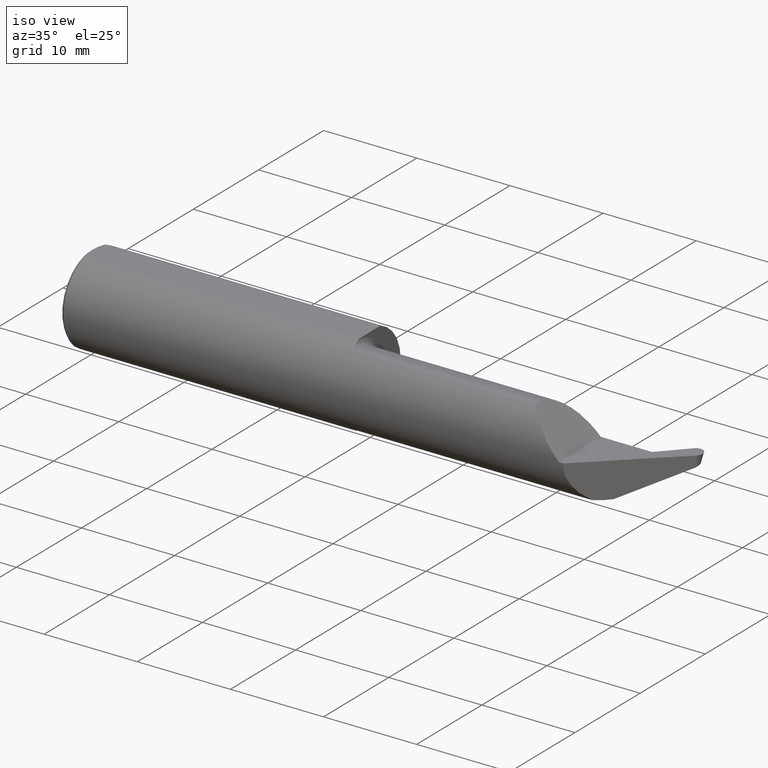
[diagram: clean part render]
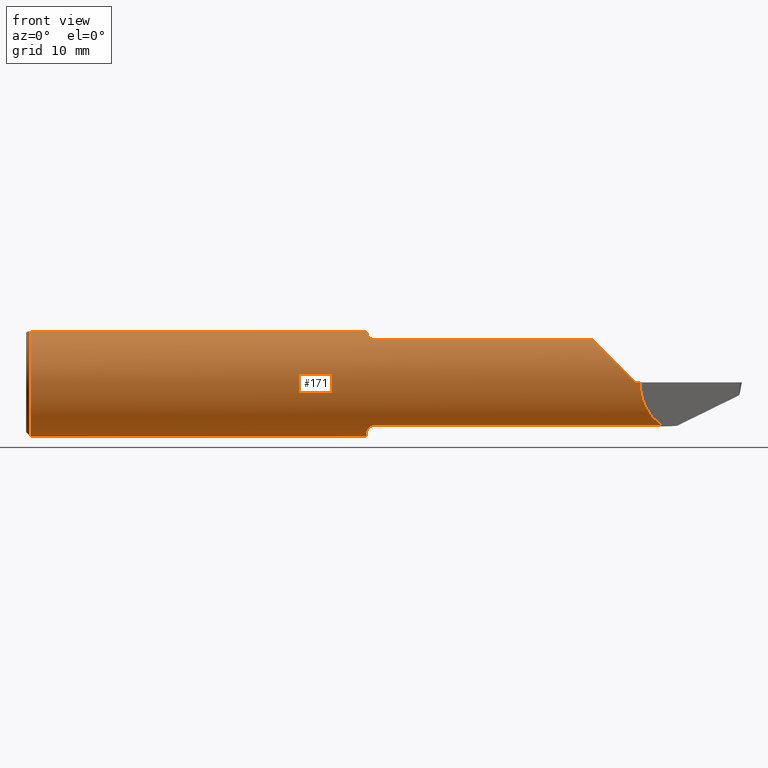
[diagram: tour spotlight — one face highlighted and labeled with its STEP entity id]
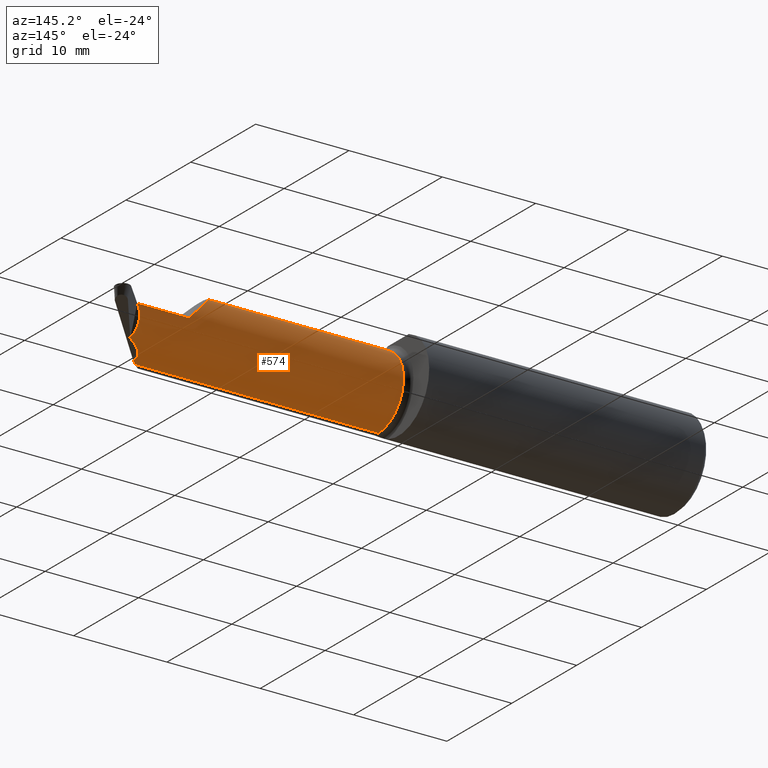
[diagram: tour spotlight — one face highlighted and labeled with its STEP entity id]
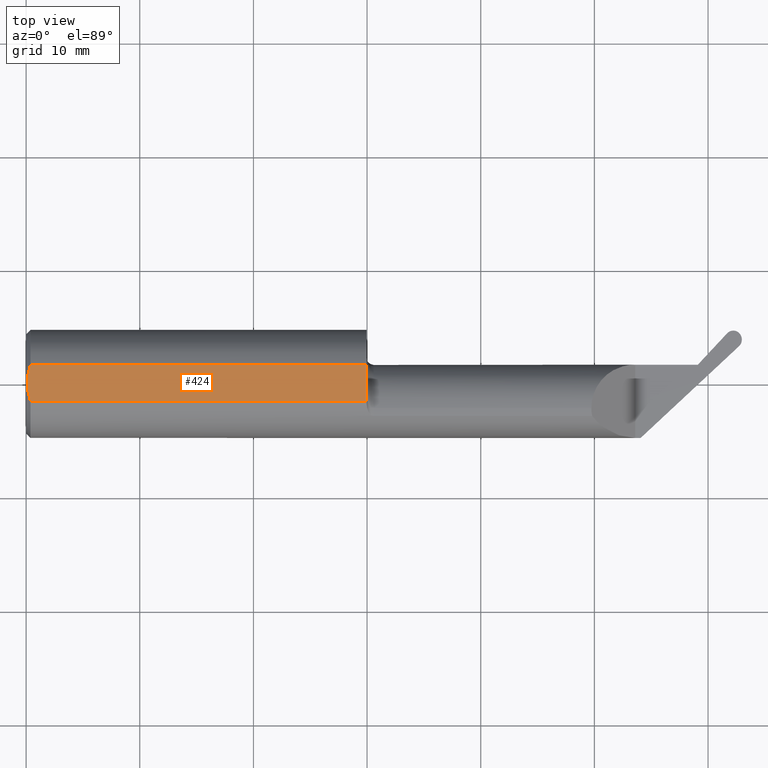
[diagram: tour spotlight — one face highlighted and labeled with its STEP entity id]
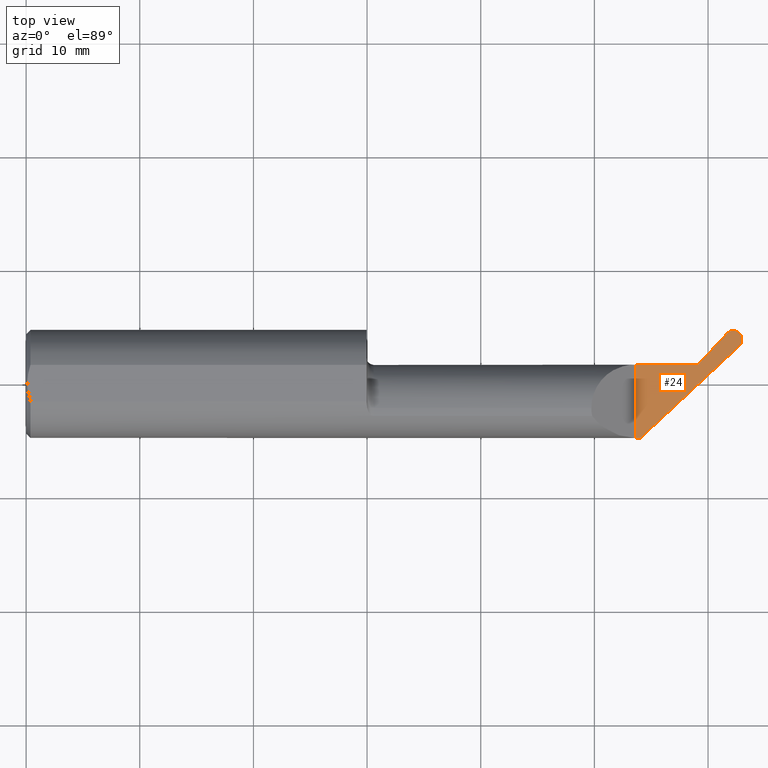
[diagram: tour spotlight — one face highlighted and labeled with its STEP entity id]
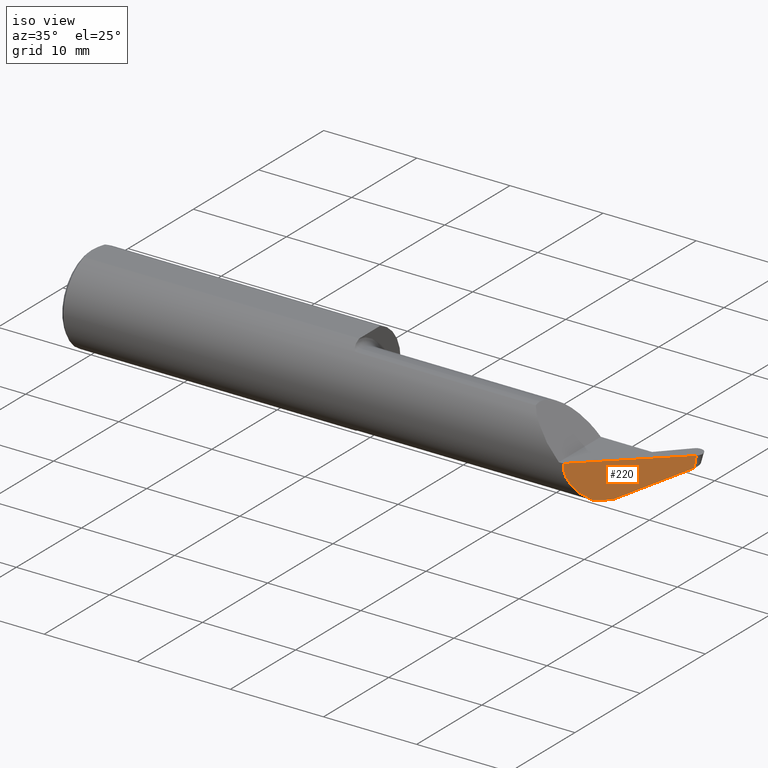
[diagram: tour spotlight — one face highlighted and labeled with its STEP entity id]
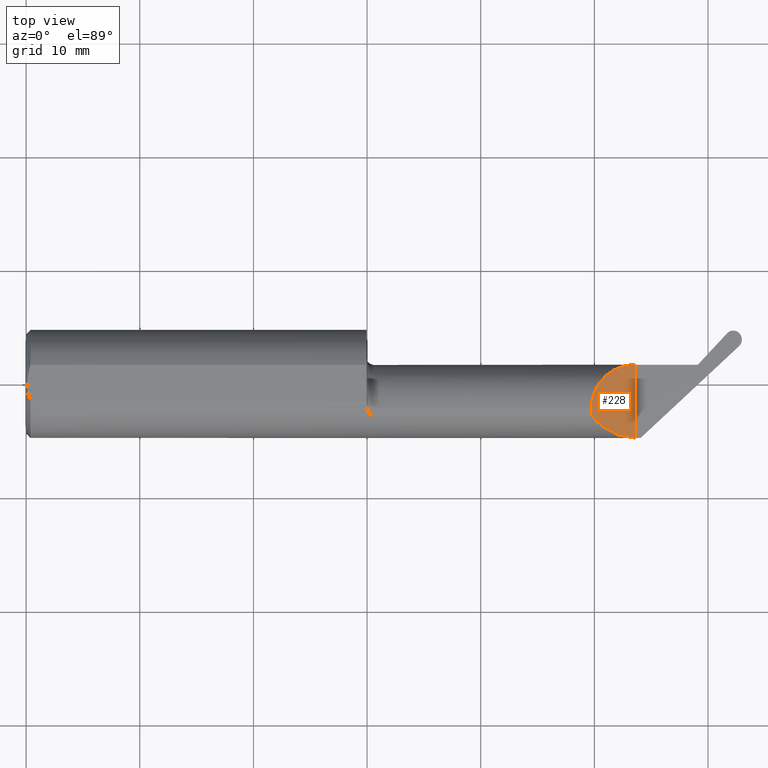
[diagram: tour spotlight — one face highlighted and labeled with its STEP entity id]
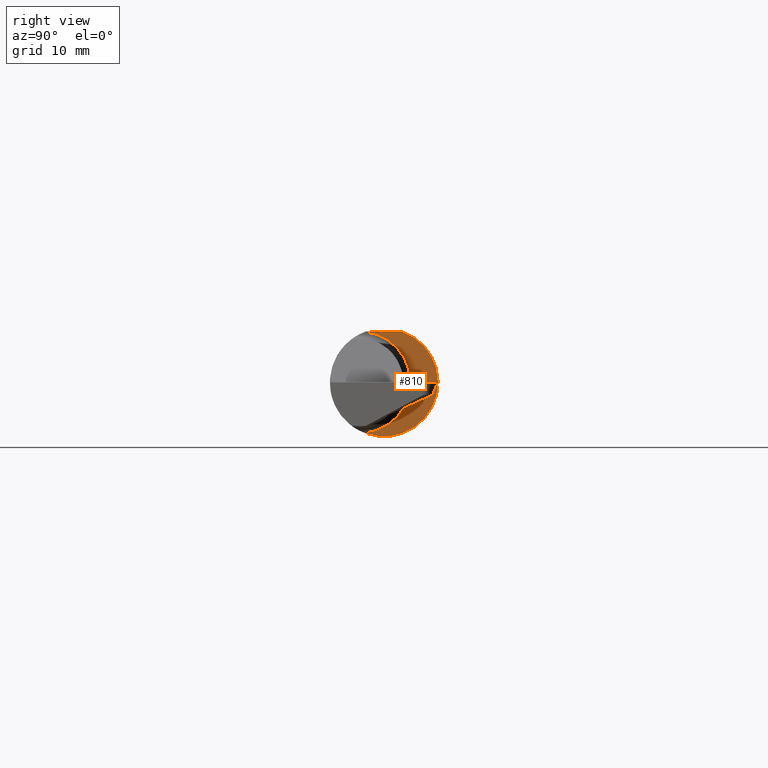
[diagram: tour spotlight — one face highlighted and labeled with its STEP entity id]
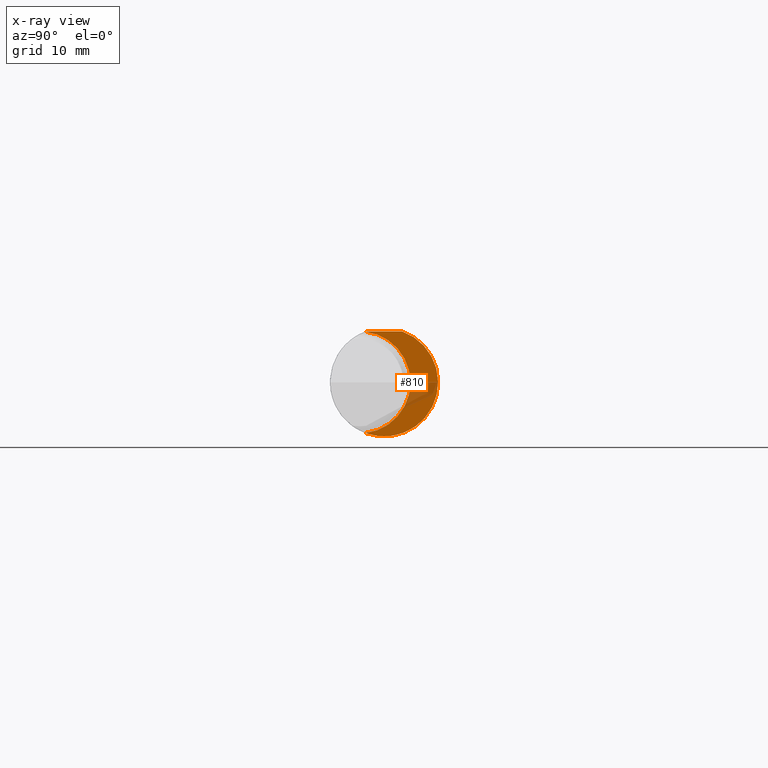
[diagram: x-ray of the same camera — body ghosted, this tour face saturated]
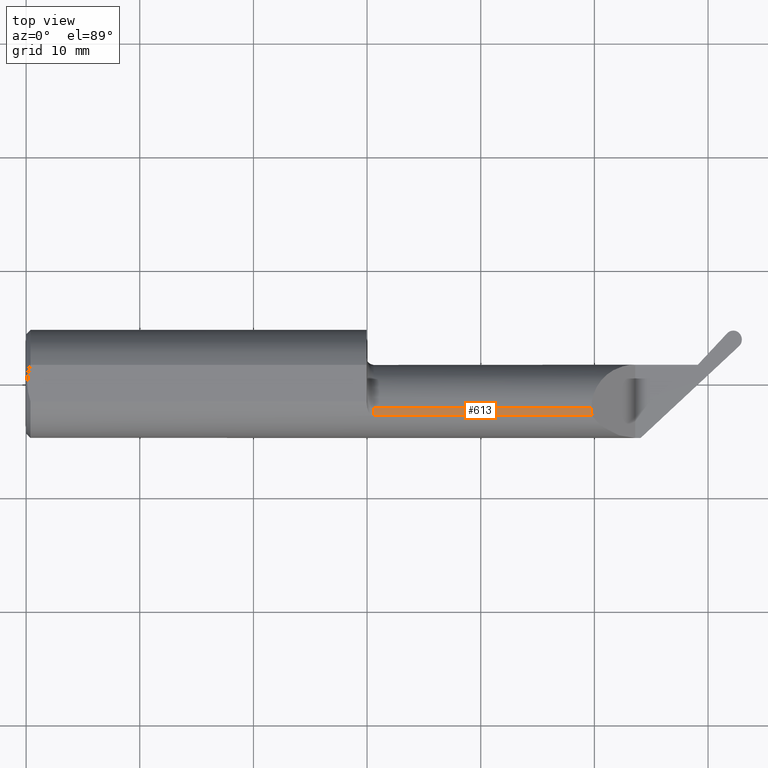
[diagram: tour spotlight — one face highlighted and labeled with its STEP entity id]
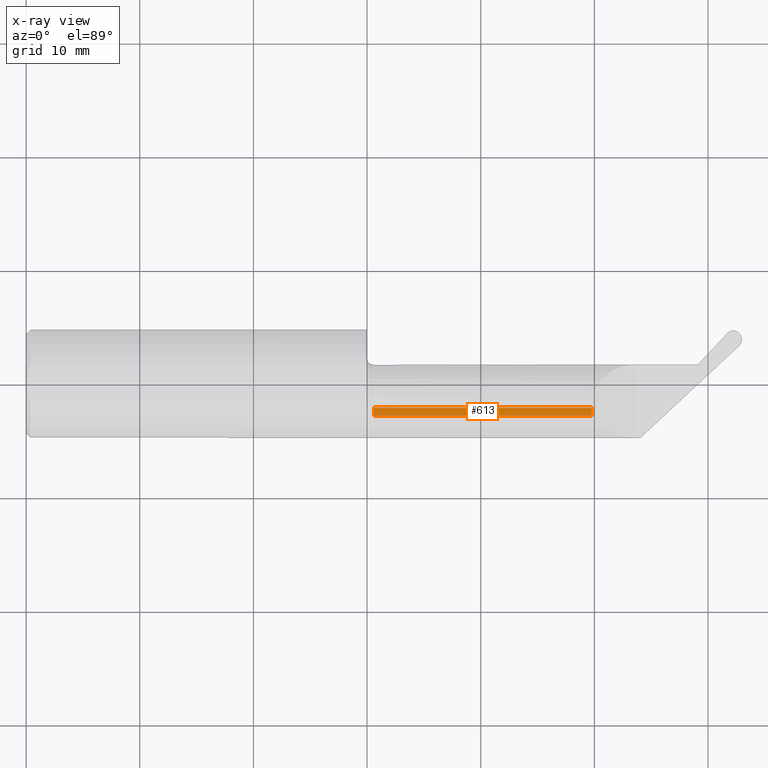
[diagram: x-ray of the same camera — body ghosted, this tour face saturated]
A machine part: a face-by-face anatomy tour. The part has 20 B-rep faces; the first image is the clean iso view, then the 8 largest visible faces are spotlighted one at a time (largest first), each with its STEP entity span.

Face 1 — front view, entity #171. In plain terms, the highlighted cylindrical surface (partial cylindrical patch) has radius 4.7587 mm, axis along (-1, -0, -0).
Definition (entity closure, byte-faithful):
#7 = ORIENTED_EDGE ( 'NONE', *, *, #668, .F. ) ;
#22 = VERTEX_POINT ( 'NONE', #425 ) ;
#23 = B_SPLINE_CURVE_WITH_KNOTS ( 'NONE', 3,
 ( #101, #90, #155, #106, #31, #793, #403, #96 ),
 .UNSPECIFIED., .F., .F.,
 ( 4, 2, 2, 4 ),
 ( 0.0006141256517407904384, 0.001146034975910856018, 0.001411989637995888103, 0.001677944300080920405 ),
 .UNSPECIFIED. ) ;
#31 = CARTESIAN_POINT ( 'NONE',  ( 1.191794310168975413, -0.1075702432047989654, 0.1534098348099889875 ) ) ;
#40 = CARTESIAN_POINT ( 'NONE',  ( 0.01500000000000079568, 0.000000000000000000, -0.1873499999999999888 ) ) ;
#41 = VECTOR ( 'NONE', #584, 39.37007874015748143 ) ;
#45 = CARTESIAN_POINT ( 'NONE',  ( 1.200394666912732777, -0.1129504686584646284, -0.1494731217638582133 ) ) ;
#46 = VECTOR ( 'NONE', #673, 39.37007874015748143 ) ;
#48 = LINE ( 'NONE', #480, #148 ) ;
#52 = CARTESIAN_POINT ( 'NONE',  ( 1.178999999999999826, 0.000000000000000000, 0.000000000000000000 ) ) ;
#61 = AXIS2_PLACEMENT_3D ( 'NONE', #815, #374, #307 ) ;
#63 = VERTEX_POINT ( 'NONE', #298 ) ;
#71 = AXIS2_PLACEMENT_3D ( 'NONE', #186, #675, #123 ) ;
#72 = DIRECTION ( 'NONE',  ( 0.000000000000000000, 0.000000000000000000, -1.000000000000000000 ) ) ;
#74 = AXIS2_PLACEMENT_3D ( 'NONE', #662, #666, #715 ) ;
#83 = VERTEX_POINT ( 'NONE', #474 ) ;
#87 = ORIENTED_EDGE ( 'NONE', *, *, #659, .F. ) ;
#90 = CARTESIAN_POINT ( 'NONE',  ( 1.182585190695228494, -0.09145938470227675532, 0.1636529957854461481 ) ) ;
#93 = CARTESIAN_POINT ( 'NONE',  ( 1.203999999999999959, -0.1129504686584648643, -0.1494731217638581855 ) ) ;
#96 = CARTESIAN_POINT ( 'NONE',  ( 1.203999999999999959, -0.1129504686584649337, 0.1494731217638581855 ) ) ;
#101 = CARTESIAN_POINT ( 'NONE',  ( 1.181184626225752821, -0.08535000000000000919, 0.1667794951425384253 ) ) ;
#106 = CARTESIAN_POINT ( 'NONE',  ( 1.189809059610950293, -0.1051947344225451636, 0.1550601383860011895 ) ) ;
#119 = ORIENTED_EDGE ( 'NONE', *, *, #686, .F. ) ;
#123 = DIRECTION ( 'NONE',  ( 0.000000000000000000, 0.000000000000000000, 1.000000000000000000 ) ) ;
#129 = ORIENTED_EDGE ( 'NONE', *, *, #459, .T. ) ;
#135 = CARTESIAN_POINT ( 'NONE',  ( 1.203999999999999959, -0.1129504686584649337, 0.1494731217638581855 ) ) ;
#142 = CIRCLE ( 'NONE', #433, 0.1873499999999999888 ) ;
#148 = VECTOR ( 'NONE', #289, 39.37007874015748143 ) ;
#153 = CARTESIAN_POINT ( 'NONE',  ( 1.178999999999999604, -0.07190536322760422705, 0.1731690544253196018 ) ) ;
#155 = CARTESIAN_POINT ( 'NONE',  ( 1.184708789571851995, -0.09743537618374246978, 0.1601392975941934860 ) ) ;
#158 = CARTESIAN_POINT ( 'NONE',  ( 2.128382079421063278, -0.1873500000000000998, 9.787372373345660285E-18 ) ) ;
#165 = ORIENTED_EDGE ( 'NONE', *, *, #260, .F. ) ;
#171 = ADVANCED_FACE ( 'NONE', ( #428 ), #623, .T. ) ;
#173 = CARTESIAN_POINT ( 'NONE',  ( 1.184689989136573418, -0.09739335834436066430, -0.1601651199371059153 ) ) ;
#186 = CARTESIAN_POINT ( 'NONE',  ( 2.500000000000000000, 0.000000000000000000, 0.000000000000000000 ) ) ;
#192 = VERTEX_POINT ( 'NONE', #627 ) ;
#194 = CARTESIAN_POINT ( 'NONE',  ( 2.050165707162854289, -0.1873499999999999888, 0.05983429283714646746 ) ) ;
#203 = CARTESIAN_POINT ( 'NONE',  ( 2.110000000000000320, -0.1873499999999999888, -4.745349621061712245E-17 ) ) ;
#208 = CARTESIAN_POINT ( 'NONE',  ( 1.765382620256976676, -0.1129504686584649059, 0.1494731217638580467 ) ) ;
#211 = VERTEX_POINT ( 'NONE', #233 ) ;
#227 = CARTESIAN_POINT ( 'NONE',  ( 1.182586893946102169, -0.09146681443154575097, -0.1636491935950596111 ) ) ;
#233 = CARTESIAN_POINT ( 'NONE',  ( 2.110000000000000320, -0.1873499999999999888, -4.745349621061712245E-17 ) ) ;
#250 = EDGE_CURVE ( 'NONE', #377, #192, #781, .T. ) ;
#257 = LINE ( 'NONE', #208, #541 ) ;
#260 = EDGE_CURVE ( 'NONE', #803, #377, #581, .T. ) ;
#273 = VERTEX_POINT ( 'NONE', #740 ) ;
#278 = EDGE_CURVE ( 'NONE', #439, #63, #322, .T. ) ;
#279 = CARTESIAN_POINT ( 'NONE',  ( 1.765382620256976676, -0.1129504686584649059, -0.1494731217638580467 ) ) ;
#284 = B_SPLINE_CURVE_WITH_KNOTS ( 'NONE', 3,
 ( #93, #45, #548, #544, #718, #173, #227, #401 ),
 .UNSPECIFIED., .F., .F.,
 ( 4, 2, 2, 4 ),
 ( 1.968246507312182034E-07, 0.0002705785518796310755, 0.0005409602791085309356, 0.001081723733566325668 ),
 .UNSPECIFIED. ) ;
#289 = DIRECTION ( 'NONE',  ( 1.000000000000000000, 0.000000000000000000, 0.000000000000000000 ) ) ;
#290 = EDGE_CURVE ( 'NONE', #528, #803, #284, .T. ) ;
#296 = CARTESIAN_POINT ( 'NONE',  ( 2.200512247315498104, -0.1129504686584649059, -0.1494731217638580467 ) ) ;
#298 = CARTESIAN_POINT ( 'NONE',  ( 1.181184626225752821, -0.08535000000000000919, 0.1667794951425384253 ) ) ;
#302 = CARTESIAN_POINT ( 'NONE',  ( 1.178999999999999826, -0.06476652021089572553, -0.1757990908957484666 ) ) ;
#307 = DIRECTION ( 'NONE',  ( 0.000000000000000000, 0.000000000000000000, -1.000000000000000000 ) ) ;
#309 = ORIENTED_EDGE ( 'NONE', *, *, #711, .F. ) ;
#312 = EDGE_CURVE ( 'NONE', #768, #211, #340, .T. ) ;
#322 = B_SPLINE_CURVE_WITH_KNOTS ( 'NONE', 3,
 ( #417, #153, #792, #654 ),
 .UNSPECIFIED., .F., .F.,
 ( 4, 4 ),
 ( 4.102419206624730480E-05, 0.0006141256517407904384 ),
 .UNSPECIFIED. ) ;
#331 = ORIENTED_EDGE ( 'NONE', *, *, #690, .T. ) ;
#335 = EDGE_CURVE ( 'NONE', #273, #192, #48, .T. ) ;
#340 = LINE ( 'NONE', #413, #46 ) ;
#348 = CARTESIAN_POINT ( 'NONE',  ( 1.203999999999999959, -0.1129504686584648643, -0.1494731217638581855 ) ) ;
#356 = CARTESIAN_POINT ( 'NONE',  ( 2.500000000000000000, -0.06325108694718227509, 0.1763499999999999512 ) ) ;
#362 = CARTESIAN_POINT ( 'NONE',  ( 1.181184626225752821, -0.08534999999999998144, -0.1667794951425384531 ) ) ;
#363 = EDGE_CURVE ( 'NONE', #83, #395, #670, .T. ) ;
#374 = DIRECTION ( 'NONE',  ( 1.000000000000000000, -0.000000000000000000, -0.000000000000000000 ) ) ;
#377 = VERTEX_POINT ( 'NONE', #483 ) ;
#380 = CARTESIAN_POINT ( 'NONE',  ( 1.960526878236143800, -0.1129504686584648504, 0.1494731217638580745 ) ) ;
#382 = VERTEX_POINT ( 'NONE', #420 ) ;
#390 = CARTESIAN_POINT ( 'NONE',  ( 1.996600064346650605, -0.1606879575236964397, 0.1133999356533508807 ) ) ;
#393 = EDGE_CURVE ( 'NONE', #382, #768, #814, .T. ) ;
#395 = VERTEX_POINT ( 'NONE', #406 ) ;
#401 = CARTESIAN_POINT ( 'NONE',  ( 1.181184626225752821, -0.08534999999999998144, -0.1667794951425384531 ) ) ;
#403 = CARTESIAN_POINT ( 'NONE',  ( 1.200386741880977493, -0.1129504686584696382, 0.1494731217638545218 ) ) ;
#406 = CARTESIAN_POINT ( 'NONE',  ( 0.01500000000000016251, -0.06325108694718371838, 0.1763499999999999512 ) ) ;
#413 = CARTESIAN_POINT ( 'NONE',  ( 2.500000000000000000, -0.1873499999999999888, -4.745349621061712245E-17 ) ) ;
#414 = ORIENTED_EDGE ( 'NONE', *, *, #335, .T. ) ;
#417 = CARTESIAN_POINT ( 'NONE',  ( 1.178999999999999826, -0.06476652021089572553, 0.1757990908957484666 ) ) ;
#420 = CARTESIAN_POINT ( 'NONE',  ( 2.200512247315498104, -0.1129504686584649059, -0.1494731217638580467 ) ) ;
#425 = CARTESIAN_POINT ( 'NONE',  ( 1.960526878236143800, -0.1129504686584648504, 0.1494731217638580745 ) ) ;
#426 = VERTEX_POINT ( 'NONE', #40 ) ;
#428 = FACE_OUTER_BOUND ( 'NONE', #692, .T. ) ;
#433 = AXIS2_PLACEMENT_3D ( 'NONE', #770, #639, #72 ) ;
#435 = ORIENTED_EDGE ( 'NONE', *, *, #250, .F. ) ;
#439 = VERTEX_POINT ( 'NONE', #628 ) ;
#455 = ORIENTED_EDGE ( 'NONE', *, *, #813, .T. ) ;
#459 = EDGE_CURVE ( 'NONE', #426, #273, #588, .T. ) ;
#474 = CARTESIAN_POINT ( 'NONE',  ( 1.178999999999999826, -0.06325108694718373226, 0.1763499999999999512 ) ) ;
#480 = CARTESIAN_POINT ( 'NONE',  ( 2.500000000000000000, 0.06325108694718227509, 0.1763499999999999512 ) ) ;
#483 = CARTESIAN_POINT ( 'NONE',  ( 1.178999999999999826, -0.06476652021089572553, -0.1757990908957484666 ) ) ;
#511 = CARTESIAN_POINT ( 'NONE',  ( 1.181184626225752821, -0.08534999999999998144, -0.1667794951425384531 ) ) ;
#515 = ORIENTED_EDGE ( 'NONE', *, *, #278, .F. ) ;
#521 = ORIENTED_EDGE ( 'NONE', *, *, #393, .T. ) ;
#528 = VERTEX_POINT ( 'NONE', #348 ) ;
#541 = VECTOR ( 'NONE', #762, 39.37007874015748143 ) ;
#544 = CARTESIAN_POINT ( 'NONE',  ( 1.191832178970064327, -0.1076014420774729086, -0.1533875229558565034 ) ) ;
#546 = LINE ( 'NONE', #279, #41 ) ;
#548 = CARTESIAN_POINT ( 'NONE',  ( 1.197064668066267767, -0.1115020549876349215, -0.1505758754555974466 ) ) ;
#549 = VECTOR ( 'NONE', #610, 39.37007874015748143 ) ;
#551 = CARTESIAN_POINT ( 'NONE',  ( 2.125318348376790123, -0.1873499999999999888, -0.05983429283714649521 ) ) ;
#556 = DIRECTION ( 'NONE',  ( 1.000000000000000000, 0.000000000000000000, 0.000000000000000000 ) ) ;
#559 = ORIENTED_EDGE ( 'NONE', *, *, #290, .F. ) ;
#581 = B_SPLINE_CURVE_WITH_KNOTS ( 'NONE', 3,
 ( #362, #621, #680, #302 ),
 .UNSPECIFIED., .F., .F.,
 ( 4, 4 ),
 ( 0.001081723733566325668, 0.001661700673542926190 ),
 .UNSPECIFIED. ) ;
#584 = DIRECTION ( 'NONE',  ( -1.000000000000000000, -0.000000000000000000, -0.000000000000000000 ) ) ;
#588 = CIRCLE ( 'NONE', #61, 0.1873499999999999888 ) ;
#610 = DIRECTION ( 'NONE',  ( -1.000000000000000000, -0.000000000000000000, -0.000000000000000000 ) ) ;
#621 = CARTESIAN_POINT ( 'NONE',  ( 1.179680673000416125, -0.07878962450278807761, -0.1701367906434541610 ) ) ;
#623 = CYLINDRICAL_SURFACE ( 'NONE', #71, 0.1873499999999999888 ) ;
#627 = CARTESIAN_POINT ( 'NONE',  ( 1.178999999999999826, 0.06325108694718227509, 0.1763499999999999512 ) ) ;
#628 = CARTESIAN_POINT ( 'NONE',  ( 1.178999999999999826, -0.06476652021089572553, 0.1757990908957484666 ) ) ;
#639 = DIRECTION ( 'NONE',  ( 1.000000000000000000, -0.000000000000000000, -0.000000000000000000 ) ) ;
#645 =( BOUNDED_CURVE ( )  B_SPLINE_CURVE ( 3, ( #203, #194, #390, #380 ),
 .UNSPECIFIED., .F., .F. ) 
 B_SPLINE_CURVE_WITH_KNOTS ( ( 4, 4 ),
 ( 4.712388980384689674, 5.636073291855367096 ),
 .UNSPECIFIED. ) 
 CURVE ( )  GEOMETRIC_REPRESENTATION_ITEM ( )  RATIONAL_B_SPLINE_CURVE ( ( 1.000000000000000000, 0.9301554373620517513, 0.9301554373620517513, 1.000000000000000000 ) ) 
 REPRESENTATION_ITEM ( '' )  );
#654 = CARTESIAN_POINT ( 'NONE',  ( 1.181184626225752821, -0.08535000000000000919, 0.1667794951425384253 ) ) ;
#659 = EDGE_CURVE ( 'NONE', #83, #439, #812, .T. ) ;
#662 = CARTESIAN_POINT ( 'NONE',  ( 1.178999999999999826, 0.000000000000000000, 0.000000000000000000 ) ) ;
#666 = DIRECTION ( 'NONE',  ( 1.000000000000000000, 0.000000000000000000, 0.000000000000000000 ) ) ;
#668 = EDGE_CURVE ( 'NONE', #63, #704, #23, .T. ) ;
#670 = LINE ( 'NONE', #356, #549 ) ;
#673 = DIRECTION ( 'NONE',  ( -1.000000000000000000, -0.000000000000000000, -0.000000000000000000 ) ) ;
#675 = DIRECTION ( 'NONE',  ( -1.000000000000000000, -0.000000000000000000, -0.000000000000000000 ) ) ;
#680 = CARTESIAN_POINT ( 'NONE',  ( 1.178999999999999826, -0.07189143372580465707, -0.1731741862229598805 ) ) ;
#686 = EDGE_CURVE ( 'NONE', #382, #528, #546, .T. ) ;
#690 = EDGE_CURVE ( 'NONE', #395, #426, #142, .T. ) ;
#692 = EDGE_LOOP ( 'NONE', ( #119, #521, #760, #455, #309, #7, #515, #87, #797, #331, #129, #414, #435, #165, #559 ) ) ;
#703 = CARTESIAN_POINT ( 'NONE',  ( 2.128382079421063278, -0.1873500000000000998, 9.787372373345660285E-18 ) ) ;
#704 = VERTEX_POINT ( 'NONE', #135 ) ;
#711 = EDGE_CURVE ( 'NONE', #704, #22, #257, .T. ) ;
#715 = DIRECTION ( 'NONE',  ( 0.000000000000000000, 0.000000000000000000, -1.000000000000000000 ) ) ;
#718 = CARTESIAN_POINT ( 'NONE',  ( 1.189783483830883171, -0.1051624633615439869, -0.1550820948667115673 ) ) ;
#740 = CARTESIAN_POINT ( 'NONE',  ( 0.01500000000000079568, 0.06325108694718227509, 0.1763499999999999512 ) ) ;
#745 = DIRECTION ( 'NONE',  ( 0.000000000000000000, 0.000000000000000000, -1.000000000000000000 ) ) ;
#752 = AXIS2_PLACEMENT_3D ( 'NONE', #52, #556, #745 ) ;
#760 = ORIENTED_EDGE ( 'NONE', *, *, #312, .T. ) ;
#762 = DIRECTION ( 'NONE',  ( 1.000000000000000000, 0.000000000000000000, 0.000000000000000000 ) ) ;
#768 = VERTEX_POINT ( 'NONE', #703 ) ;
#770 = CARTESIAN_POINT ( 'NONE',  ( 0.01500000000000079568, 0.000000000000000000, 0.000000000000000000 ) ) ;
#778 = CARTESIAN_POINT ( 'NONE',  ( 2.151167134861694752, -0.1606879575236964119, -0.1133999356533509778 ) ) ;
#781 = CIRCLE ( 'NONE', #752, 0.1873499999999999888 ) ;
#792 = CARTESIAN_POINT ( 'NONE',  ( 1.179675599206764236, -0.07876749217114938084, 0.1701481169429116536 ) ) ;
#793 = CARTESIAN_POINT ( 'NONE',  ( 1.197078532975328402, -0.1115153464561632751, 0.1505664708503510196 ) ) ;
#797 = ORIENTED_EDGE ( 'NONE', *, *, #363, .T. ) ;
#803 = VERTEX_POINT ( 'NONE', #511 ) ;
#812 = CIRCLE ( 'NONE', #74, 0.1873499999999999888 ) ;
#813 = EDGE_CURVE ( 'NONE', #211, #22, #645, .T. ) ;
#814 =( BOUNDED_CURVE ( )  B_SPLINE_CURVE ( 3, ( #296, #778, #551, #158 ),
 .UNSPECIFIED., .F., .T. ) 
 B_SPLINE_CURVE_WITH_KNOTS ( ( 4, 4 ),
 ( 5.407212885630061194, 6.330897197100739504 ),
 .UNSPECIFIED. ) 
 CURVE ( )  GEOMETRIC_REPRESENTATION_ITEM ( )  RATIONAL_B_SPLINE_CURVE ( ( 1.000000000000000000, 0.9301554373620515292, 0.9301554373620515292, 1.000000000000000000 ) ) 
 REPRESENTATION_ITEM ( '' )  );
#815 = CARTESIAN_POINT ( 'NONE',  ( 0.01500000000000079568, 0.000000000000000000, 0.000000000000000000 ) ) ;

Face 2 — auxiliary view, entity #574. In plain terms, the highlighted cylindrical surface (partial cylindrical patch) has radius 3.8608 mm, axis along (-1, -0, -0).
Definition (entity closure, byte-faithful):
#3 = DIRECTION ( 'NONE',  ( 1.000000000000000000, 0.000000000000000000, 0.000000000000000000 ) ) ;
#6 = LINE ( 'NONE', #698, #287 ) ;
#9 = DIRECTION ( 'NONE',  ( -1.000000000000000000, -0.000000000000000000, -0.000000000000000000 ) ) ;
#14 = CARTESIAN_POINT ( 'NONE',  ( 2.326765240513953170, 0.02599910668799765637, -0.1034667890668112683 ) ) ;
#15 = DIRECTION ( 'NONE',  ( -1.000000000000000000, -0.000000000000000000, -0.000000000000000000 ) ) ;
#18 = CIRCLE ( 'NONE', #484, 0.1519999999999999685 ) ;
#27 = VERTEX_POINT ( 'NONE', #60 ) ;
#28 = CARTESIAN_POINT ( 'NONE',  ( 2.310740671077536668, 0.05227606614710521293, -0.06473972895883649270 ) ) ;
#29 = CARTESIAN_POINT ( 'NONE',  ( 2.246793121151486883, -0.06970107841518859149, -0.1513952325811489807 ) ) ;
#32 = CARTESIAN_POINT ( 'NONE',  ( 1.178999999999999826, -0.08534999999999998144, 0.000000000000000000 ) ) ;
#33 = CARTESIAN_POINT ( 'NONE',  ( 2.313250730142804468, 0.06138847945356275260, -0.03999301210648274069 ) ) ;
#55 = ORIENTED_EDGE ( 'NONE', *, *, #478, .F. ) ;
#60 = CARTESIAN_POINT ( 'NONE',  ( 1.203999999999999959, -0.08534999999999996756, -0.1520000000000002460 ) ) ;
#89 = ORIENTED_EDGE ( 'NONE', *, *, #802, .T. ) ;
#97 = FACE_OUTER_BOUND ( 'NONE', #589, .T. ) ;
#98 = CARTESIAN_POINT ( 'NONE',  ( 2.311695002015696332, 0.04467455014931975138, -0.07890578795393023148 ) ) ;
#120 = CARTESIAN_POINT ( 'NONE',  ( 2.326765240513951838, 0.06665000000000137481, 7.375989582893510493E-15 ) ) ;
#140 = ORIENTED_EDGE ( 'NONE', *, *, #774, .F. ) ;
#144 = EDGE_CURVE ( 'NONE', #199, #408, #545, .T. ) ;
#152 = CARTESIAN_POINT ( 'NONE',  ( 2.310851030705861842, 0.04989058623087454930, -0.06958800794743980056 ) ) ;
#157 = CARTESIAN_POINT ( 'NONE',  ( 2.311140910708375795, 0.05645629897935686842, -0.05498308975101568602 ) ) ;
#166 = CARTESIAN_POINT ( 'NONE',  ( 2.110000000000000320, 0.06665000000000012581, -4.745349621061712245E-17 ) ) ;
#172 =( BOUNDED_CURVE ( )  B_SPLINE_CURVE ( 3, ( #454, #225, #783, #14 ),
 .UNSPECIFIED., .F., .T. ) 
 B_SPLINE_CURVE_WITH_KNOTS ( ( 4, 4 ),
 ( 2.699207237110283764, 2.767232025981910759 ),
 .UNSPECIFIED. ) 
 CURVE ( )  GEOMETRIC_REPRESENTATION_ITEM ( )  RATIONAL_B_SPLINE_CURVE ( ( 1.000000000000000000, 0.9996144228480826621, 0.9996144228480826621, 1.000000000000000000 ) ) 
 REPRESENTATION_ITEM ( '' )  );
#184 = VECTOR ( 'NONE', #15, 39.37007874015748143 ) ;
#196 = DIRECTION ( 'NONE',  ( 0.000000000000000000, 0.000000000000000000, 1.000000000000000000 ) ) ;
#198 = CARTESIAN_POINT ( 'NONE',  ( 2.326765240513953170, 0.01840989495084312255, -0.1110760289161888265 ) ) ;
#199 = VERTEX_POINT ( 'NONE', #120 ) ;
#204 = VERTEX_POINT ( 'NONE', #798 ) ;
#207 = VERTEX_POINT ( 'NONE', #436 ) ;
#209 = VERTEX_POINT ( 'NONE', #370 ) ;
#214 = CARTESIAN_POINT ( 'NONE',  ( 2.315440454153081529, 0.03282998080076678787, -0.09615879041668186356 ) ) ;
#225 = CARTESIAN_POINT ( 'NONE',  ( 2.324130684797578450, 0.02122147899316073269, -0.1084361721259423650 ) ) ;
#232 = CARTESIAN_POINT ( 'NONE',  ( 1.203999999999999959, -0.08534999999999998144, 0.1520000000000002460 ) ) ;
#236 = CARTESIAN_POINT ( 'NONE',  ( 1.178999999999999826, -0.08534999999999996756, -0.1520000000000001072 ) ) ;
#252 = EDGE_CURVE ( 'NONE', #207, #27, #801, .T. ) ;
#268 = VERTEX_POINT ( 'NONE', #558 ) ;
#269 = VERTEX_POINT ( 'NONE', #805 ) ;
#270 = CARTESIAN_POINT ( 'NONE',  ( 2.267775410017286664, -0.004023142920380426771, -0.1320314922655561329 ) ) ;
#280 = DIRECTION ( 'NONE',  ( -1.000000000000000000, -0.000000000000000000, -0.000000000000000000 ) ) ;
#286 = CARTESIAN_POINT ( 'NONE',  ( 2.322206912919363653, 0.06665000000000172176, -0.009735860034116841991 ) ) ;
#287 = VECTOR ( 'NONE', #3, 39.37007874015748143 ) ;
#294 = VECTOR ( 'NONE', #490, 39.37007874015748143 ) ;
#321 = VERTEX_POINT ( 'NONE', #232 ) ;
#325 = LINE ( 'NONE', #575, #184 ) ;
#332 = ORIENTED_EDGE ( 'NONE', *, *, #518, .T. ) ;
#338 = CARTESIAN_POINT ( 'NONE',  ( 2.326765240513951838, 0.06665000000000137481, 7.375989582893510493E-15 ) ) ;
#370 = CARTESIAN_POINT ( 'NONE',  ( 2.326765240513953170, 0.02599910668799765637, -0.1034667890668112683 ) ) ;
#371 = DIRECTION ( 'NONE',  ( 0.000000000000000000, 0.000000000000000000, 1.000000000000000000 ) ) ;
#372 = EDGE_CURVE ( 'NONE', #207, #204, #509, .T. ) ;
#373 = AXIS2_PLACEMENT_3D ( 'NONE', #440, #634, #371 ) ;
#408 = VERTEX_POINT ( 'NONE', #660 ) ;
#421 =( BOUNDED_CURVE ( )  B_SPLINE_CURVE ( 3, ( #607, #476, #776, #166 ),
 .UNSPECIFIED., .F., .F. ) 
 B_SPLINE_CURVE_WITH_KNOTS ( ( 4, 4 ),
 ( 0.000000000000000000, 1.570796326794896780 ),
 .UNSPECIFIED. ) 
 CURVE ( )  GEOMETRIC_REPRESENTATION_ITEM ( )  RATIONAL_B_SPLINE_CURVE ( ( 1.000000000000000000, 0.8047378541243649375, 0.8047378541243649375, 1.000000000000000000 ) ) 
 REPRESENTATION_ITEM ( '' )  );
#423 = CARTESIAN_POINT ( 'NONE',  ( 2.322652115599469269, 0.01870869955986064273, -0.1107961508623389602 ) ) ;
#436 = CARTESIAN_POINT ( 'NONE',  ( 2.229980741030837876, -0.08534999999999996756, -0.1520000000000001072 ) ) ;
#440 = CARTESIAN_POINT ( 'NONE',  ( 1.203999999999999959, -0.08534999999999998144, 0.000000000000000000 ) ) ;
#445 = ORIENTED_EDGE ( 'NONE', *, *, #631, .T. ) ;
#454 = CARTESIAN_POINT ( 'NONE',  ( 2.322652115599469269, 0.01870869955986064273, -0.1107961508623389602 ) ) ;
#468 = CARTESIAN_POINT ( 'NONE',  ( 2.318616529654808467, 0.02598289541876283235, -0.1039642947416279523 ) ) ;
#469 = CARTESIAN_POINT ( 'NONE',  ( 2.229980741030837876, -0.08534999999999996756, -0.1520000000000001072 ) ) ;
#476 = CARTESIAN_POINT ( 'NONE',  ( 1.958000000000001961, 0.003689538519289640821, 0.1520000000000001072 ) ) ;
#478 = EDGE_CURVE ( 'NONE', #321, #27, #520, .T. ) ;
#484 = AXIS2_PLACEMENT_3D ( 'NONE', #700, #9, #196 ) ;
#490 = DIRECTION ( 'NONE',  ( -1.000000000000000000, -0.000000000000000000, -0.000000000000000000 ) ) ;
#495 = EDGE_CURVE ( 'NONE', #408, #209, #172, .T. ) ;
#496 = ORIENTED_EDGE ( 'NONE', *, *, #252, .T. ) ;
#504 = ORIENTED_EDGE ( 'NONE', *, *, #372, .F. ) ;
#505 =( BOUNDED_CURVE ( )  B_SPLINE_CURVE ( 3, ( #708, #693, #270, #198 ),
 .UNSPECIFIED., .F., .T. ) 
 B_SPLINE_CURVE_WITH_KNOTS ( ( 4, 4 ),
 ( 6.185793117290076637, 6.782643011643239461 ),
 .UNSPECIFIED. ) 
 CURVE ( )  GEOMETRIC_REPRESENTATION_ITEM ( )  RATIONAL_B_SPLINE_CURVE ( ( 1.000000000000000000, 0.9705338425826713911, 0.9705338425826713911, 1.000000000000000000 ) ) 
 REPRESENTATION_ITEM ( '' )  );
#509 =( BOUNDED_CURVE ( )  B_SPLINE_CURVE ( 3, ( #469, #732, #29, #537 ),
 .UNSPECIFIED., .F., .T. ) 
 B_SPLINE_CURVE_WITH_KNOTS ( ( 4, 4 ),
 ( 1.523084436873743730, 1.677591342623069304 ),
 .UNSPECIFIED. ) 
 CURVE ( )  GEOMETRIC_REPRESENTATION_ITEM ( )  RATIONAL_B_SPLINE_CURVE ( ( 1.000000000000000000, 0.9980116238697762654, 0.9980116238697762654, 1.000000000000000000 ) ) 
 REPRESENTATION_ITEM ( '' )  );
#518 = EDGE_CURVE ( 'NONE', #209, #585, #18, .T. ) ;
#520 = CIRCLE ( 'NONE', #373, 0.1520000000000002460 ) ;
#534 = DIRECTION ( 'NONE',  ( 0.000000000000000000, 0.000000000000000000, 1.000000000000000000 ) ) ;
#537 = CARTESIAN_POINT ( 'NONE',  ( 2.255158004206215150, -0.06195827954392699871, -0.1501893052587467969 ) ) ;
#543 = CARTESIAN_POINT ( 'NONE',  ( 2.318469477300028281, 0.06572839334873663286, -0.01965257165043447427 ) ) ;
#545 = B_SPLINE_CURVE_WITH_KNOTS ( 'NONE', 3,
 ( #338, #286, #543, #658, #33, #594, #157, #28, #152, #98, #777, #214, #468, #423 ),
 .UNSPECIFIED., .F., .F.,
 ( 4, 2, 2, 2, 2, 2, 4 ),
 ( 4.229032621411465167E-16, 0.0008101701905476186216, 0.001215255285821218844, 0.001620340381094819175, 0.002025425476368419506, 0.002430510571642019620, 0.003240680762189222016 ),
 .UNSPECIFIED. ) ;
#558 = CARTESIAN_POINT ( 'NONE',  ( 2.110000000000000320, 0.06665000000000012581, -4.745349621061712245E-17 ) ) ;
#574 = ADVANCED_FACE ( 'NONE', ( #97 ), #598, .T. ) ;
#575 = CARTESIAN_POINT ( 'NONE',  ( 1.178999999999999826, -0.08534999999999998144, 0.1520000000000001072 ) ) ;
#585 = VERTEX_POINT ( 'NONE', #656 ) ;
#589 = EDGE_LOOP ( 'NONE', ( #504, #496, #55, #140, #445, #89, #590, #622, #332, #775 ) ) ;
#590 = ORIENTED_EDGE ( 'NONE', *, *, #144, .T. ) ;
#594 = CARTESIAN_POINT ( 'NONE',  ( 2.311646510910593921, 0.05827565579095032172, -0.05003292284398740131 ) ) ;
#598 = CYLINDRICAL_SURFACE ( 'NONE', #651, 0.1520000000000001072 ) ;
#607 = CARTESIAN_POINT ( 'NONE',  ( 1.958000000000001961, -0.08534999999999998144, 0.1520000000000001072 ) ) ;
#622 = ORIENTED_EDGE ( 'NONE', *, *, #495, .T. ) ;
#631 = EDGE_CURVE ( 'NONE', #269, #268, #421, .T. ) ;
#634 = DIRECTION ( 'NONE',  ( -1.000000000000000000, -0.000000000000000000, -0.000000000000000000 ) ) ;
#651 = AXIS2_PLACEMENT_3D ( 'NONE', #32, #280, #534 ) ;
#656 = CARTESIAN_POINT ( 'NONE',  ( 2.326765240513953170, 0.01840989495084312255, -0.1110760289161888265 ) ) ;
#658 = CARTESIAN_POINT ( 'NONE',  ( 2.314362532186939436, 0.06268864236261798006, -0.03486095946414376201 ) ) ;
#660 = CARTESIAN_POINT ( 'NONE',  ( 2.322652115599469269, 0.01870869955986064273, -0.1107961508623389602 ) ) ;
#693 = CARTESIAN_POINT ( 'NONE',  ( 2.243181647572354276, -0.03162588104537767536, -0.1454650874776076686 ) ) ;
#698 = CARTESIAN_POINT ( 'NONE',  ( 1.178999999999999826, 0.06665000000000012581, -4.745349621061712245E-17 ) ) ;
#700 = CARTESIAN_POINT ( 'NONE',  ( 2.326765240513953170, -0.08534999999999998144, 0.000000000000000000 ) ) ;
#708 = CARTESIAN_POINT ( 'NONE',  ( 2.255158004206215150, -0.06195827954392699871, -0.1501893052587467969 ) ) ;
#725 = EDGE_CURVE ( 'NONE', #204, #585, #505, .T. ) ;
#732 = CARTESIAN_POINT ( 'NONE',  ( 2.238383979556604952, -0.07751385330230932402, -0.1520000000000001350 ) ) ;
#774 = EDGE_CURVE ( 'NONE', #269, #321, #325, .T. ) ;
#775 = ORIENTED_EDGE ( 'NONE', *, *, #725, .F. ) ;
#776 = CARTESIAN_POINT ( 'NONE',  ( 2.020960461480711512, 0.06665000000000013969, 0.08903953851928961272 ) ) ;
#777 = CARTESIAN_POINT ( 'NONE',  ( 2.312420077741309310, 0.04185901539785744779, -0.08336139160681774185 ) ) ;
#783 = CARTESIAN_POINT ( 'NONE',  ( 2.325502255281968633, 0.02365255206876298866, -0.1059921091525841547 ) ) ;
#798 = CARTESIAN_POINT ( 'NONE',  ( 2.255158004206215150, -0.06195827954392699871, -0.1501893052587467969 ) ) ;
#801 = LINE ( 'NONE', #236, #294 ) ;
#802 = EDGE_CURVE ( 'NONE', #268, #199, #6, .T. ) ;
#805 = CARTESIAN_POINT ( 'NONE',  ( 1.958000000000001961, -0.08534999999999998144, 0.1520000000000001072 ) ) ;

Face 3 — top view, entity #424. In plain terms, the highlighted planar face has unit normal (-0, 0, -1).
Definition (entity closure, byte-faithful):
#34 = FACE_OUTER_BOUND ( 'NONE', #394, .T. ) ;
#43 = CARTESIAN_POINT ( 'NONE',  ( 0.01500000000000079568, 0.06325108694718227509, 0.1763499999999999512 ) ) ;
#47 = ORIENTED_EDGE ( 'NONE', *, *, #335, .F. ) ;
#48 = LINE ( 'NONE', #480, #148 ) ;
#59 = CARTESIAN_POINT ( 'NONE',  ( 0.008096539338608519515, -0.04280300585742027875, 0.1763499999999999512 ) ) ;
#83 = VERTEX_POINT ( 'NONE', #474 ) ;
#104 = CARTESIAN_POINT ( 'NONE',  ( 0.000000000000000000, 0.1000000000000000056, 0.1763499999999999512 ) ) ;
#108 = CARTESIAN_POINT ( 'NONE',  ( 1.178999999999999826, 0.1000000000000000056, 0.1763499999999999512 ) ) ;
#148 = VECTOR ( 'NONE', #289, 39.37007874015748143 ) ;
#154 = VERTEX_POINT ( 'NONE', #360 ) ;
#164 = DIRECTION ( 'NONE',  ( 0.000000000000000000, -1.000000000000000000, 0.000000000000000000 ) ) ;
#175 = B_SPLINE_CURVE_WITH_KNOTS ( 'NONE', 3,
 ( #43, #347, #336, #602 ),
 .UNSPECIFIED., .F., .F.,
 ( 4, 4 ),
 ( 0.003872958501701102233, 0.005496776235116782039 ),
 .UNSPECIFIED. ) ;
#192 = VERTEX_POINT ( 'NONE', #627 ) ;
#193 = CARTESIAN_POINT ( 'NONE',  ( 0.004000000000000662748, 2.159664630158893524E-17, 0.1763499999999999512 ) ) ;
#243 = B_SPLINE_CURVE_WITH_KNOTS ( 'NONE', 3,
 ( #193, #755, #59, #318 ),
 .UNSPECIFIED., .F., .F.,
 ( 4, 4 ),
 ( 0.005496776235116782039, 0.007121625476792167730 ),
 .UNSPECIFIED. ) ;
#258 = ORIENTED_EDGE ( 'NONE', *, *, #434, .T. ) ;
#273 = VERTEX_POINT ( 'NONE', #740 ) ;
#289 = DIRECTION ( 'NONE',  ( 1.000000000000000000, 0.000000000000000000, 0.000000000000000000 ) ) ;
#316 = EDGE_CURVE ( 'NONE', #192, #83, #595, .T. ) ;
#318 = CARTESIAN_POINT ( 'NONE',  ( 0.01500000000000016251, -0.06325108694718371838, 0.1763499999999999512 ) ) ;
#335 = EDGE_CURVE ( 'NONE', #273, #192, #48, .T. ) ;
#336 = CARTESIAN_POINT ( 'NONE',  ( 0.004000000000000663615, 0.02174349820064852903, 0.1763499999999999512 ) ) ;
#337 = ORIENTED_EDGE ( 'NONE', *, *, #671, .T. ) ;
#347 = CARTESIAN_POINT ( 'NONE',  ( 0.008079618022130571897, 0.04275288484297757458, 0.1763499999999999512 ) ) ;
#351 = DIRECTION ( 'NONE',  ( -0.000000000000000000, 0.000000000000000000, -1.000000000000000000 ) ) ;
#356 = CARTESIAN_POINT ( 'NONE',  ( 2.500000000000000000, -0.06325108694718227509, 0.1763499999999999512 ) ) ;
#360 = CARTESIAN_POINT ( 'NONE',  ( 0.004000000000000662748, 2.159664630158893524E-17, 0.1763499999999999512 ) ) ;
#363 = EDGE_CURVE ( 'NONE', #83, #395, #670, .T. ) ;
#392 = VECTOR ( 'NONE', #164, 39.37007874015748143 ) ;
#394 = EDGE_LOOP ( 'NONE', ( #466, #47, #337, #258, #644 ) ) ;
#395 = VERTEX_POINT ( 'NONE', #406 ) ;
#400 = AXIS2_PLACEMENT_3D ( 'NONE', #104, #351, #606 ) ;
#406 = CARTESIAN_POINT ( 'NONE',  ( 0.01500000000000016251, -0.06325108694718371838, 0.1763499999999999512 ) ) ;
#424 = ADVANCED_FACE ( 'NONE', ( #34 ), #665, .F. ) ;
#434 = EDGE_CURVE ( 'NONE', #154, #395, #243, .T. ) ;
#466 = ORIENTED_EDGE ( 'NONE', *, *, #316, .F. ) ;
#474 = CARTESIAN_POINT ( 'NONE',  ( 1.178999999999999826, -0.06325108694718373226, 0.1763499999999999512 ) ) ;
#480 = CARTESIAN_POINT ( 'NONE',  ( 2.500000000000000000, 0.06325108694718227509, 0.1763499999999999512 ) ) ;
#549 = VECTOR ( 'NONE', #610, 39.37007874015748143 ) ;
#595 = LINE ( 'NONE', #108, #392 ) ;
#602 = CARTESIAN_POINT ( 'NONE',  ( 0.004000000000000662748, 2.159664630158893524E-17, 0.1763499999999999512 ) ) ;
#606 = DIRECTION ( 'NONE',  ( -1.000000000000000000, 0.000000000000000000, 0.000000000000000000 ) ) ;
#610 = DIRECTION ( 'NONE',  ( -1.000000000000000000, -0.000000000000000000, -0.000000000000000000 ) ) ;
#627 = CARTESIAN_POINT ( 'NONE',  ( 1.178999999999999826, 0.06325108694718227509, 0.1763499999999999512 ) ) ;
#644 = ORIENTED_EDGE ( 'NONE', *, *, #363, .F. ) ;
#665 = PLANE ( 'NONE',  #400 ) ;
#670 = LINE ( 'NONE', #356, #549 ) ;
#671 = EDGE_CURVE ( 'NONE', #273, #154, #175, .T. ) ;
#740 = CARTESIAN_POINT ( 'NONE',  ( 0.01500000000000079568, 0.06325108694718227509, 0.1763499999999999512 ) ) ;
#755 = CARTESIAN_POINT ( 'NONE',  ( 0.004000000000000660146, -0.02175731046388920675, 0.1763499999999999512 ) ) ;

Face 4 — top view, entity #24. In plain terms, the highlighted planar face has unit normal (-0, 0, -1).
Definition (entity closure, byte-faithful):
#2 = EDGE_LOOP ( 'NONE', ( #635, #649, #78, #115, #811, #576 ) ) ;
#3 = DIRECTION ( 'NONE',  ( 1.000000000000000000, 0.000000000000000000, 0.000000000000000000 ) ) ;
#6 = LINE ( 'NONE', #698, #287 ) ;
#13 = VERTEX_POINT ( 'NONE', #806 ) ;
#24 = ADVANCED_FACE ( 'NONE', ( #422 ), #185, .F. ) ;
#36 = AXIS2_PLACEMENT_3D ( 'NONE', #491, #619, #557 ) ;
#46 = VECTOR ( 'NONE', #673, 39.37007874015748143 ) ;
#78 = ORIENTED_EDGE ( 'NONE', *, *, #641, .F. ) ;
#80 = EDGE_CURVE ( 'NONE', #13, #674, #729, .T. ) ;
#92 = CARTESIAN_POINT ( 'NONE',  ( 2.473051519662936570, 0.1732206932029125290, -4.745349621061712862E-17 ) ) ;
#115 = ORIENTED_EDGE ( 'NONE', *, *, #802, .F. ) ;
#120 = CARTESIAN_POINT ( 'NONE',  ( 2.326765240513951838, 0.06665000000000137481, 7.375989582893510493E-15 ) ) ;
#133 = EDGE_CURVE ( 'NONE', #13, #768, #463, .T. ) ;
#185 = PLANE ( 'NONE',  #36 ) ;
#199 = VERTEX_POINT ( 'NONE', #120 ) ;
#211 = VERTEX_POINT ( 'NONE', #233 ) ;
#221 = CARTESIAN_POINT ( 'NONE',  ( 2.458631911691362415, 0.1848108567059725260, -4.745349621061712862E-17 ) ) ;
#230 = CARTESIAN_POINT ( 'NONE',  ( 2.185022947421021211, -0.08534999999999998144, -4.745349621061712245E-17 ) ) ;
#231 = CARTESIAN_POINT ( 'NONE',  ( 2.479550043966549211, 0.1566078811657158898, -4.745349621061712245E-17 ) ) ;
#233 = CARTESIAN_POINT ( 'NONE',  ( 2.110000000000000320, -0.1873499999999999888, -4.745349621061712245E-17 ) ) ;
#268 = VERTEX_POINT ( 'NONE', #558 ) ;
#287 = VECTOR ( 'NONE', #3, 39.37007874015748143 ) ;
#312 = EDGE_CURVE ( 'NONE', #768, #211, #340, .T. ) ;
#340 = LINE ( 'NONE', #413, #46 ) ;
#342 = CARTESIAN_POINT ( 'NONE',  ( 2.428201319790835200, 0.1754268774841054312, -4.745349621061712245E-17 ) ) ;
#405 = CARTESIAN_POINT ( 'NONE',  ( 2.478866630901332968, 0.1436261120971768779, -4.745349621061711013E-17 ) ) ;
#413 = CARTESIAN_POINT ( 'NONE',  ( 2.500000000000000000, -0.1873499999999999888, -4.745349621061712245E-17 ) ) ;
#415 = LINE ( 'NONE', #230, #565 ) ;
#416 = CARTESIAN_POINT ( 'NONE',  ( 2.475531767914440628, 0.1363873478363286096, -4.745349621061712245E-17 ) ) ;
#422 = FACE_OUTER_BOUND ( 'NONE', #2, .T. ) ;
#463 = LINE ( 'NONE', #605, #739 ) ;
#467 = DIRECTION ( 'NONE',  ( -0.000000000000000000, 1.000000000000000000, -0.000000000000000000 ) ) ;
#481 = CARTESIAN_POINT ( 'NONE',  ( 2.110000000000000320, 0.2000000000000000111, -4.745349621061712245E-17 ) ) ;
#482 = CARTESIAN_POINT ( 'NONE',  ( 2.476262188617134097, 0.1681126724613578871, -4.745349621061712245E-17 ) ) ;
#491 = CARTESIAN_POINT ( 'NONE',  ( 2.110000000000000320, 0.2000000000000000111, -4.745349621061712245E-17 ) ) ;
#526 = CARTESIAN_POINT ( 'NONE',  ( 2.428201319790835200, 0.1754268774841054312, -4.745349621061712245E-17 ) ) ;
#529 = LINE ( 'NONE', #481, #788 ) ;
#530 = CARTESIAN_POINT ( 'NONE',  ( 2.434226744680231924, 0.1818717855234817660, -4.745349621061712862E-17 ) ) ;
#536 = CARTESIAN_POINT ( 'NONE',  ( 2.465853325319160572, 0.1814582959454558719, -4.745349621061713478E-17 ) ) ;
#547 = CARTESIAN_POINT ( 'NONE',  ( 2.478757102380690025, 0.1626767720505861159, -4.745349621061712245E-17 ) ) ;
#557 = DIRECTION ( 'NONE',  ( -1.000000000000000000, 0.000000000000000000, 0.000000000000000000 ) ) ;
#558 = CARTESIAN_POINT ( 'NONE',  ( 2.110000000000000320, 0.06665000000000012581, -4.745349621061712245E-17 ) ) ;
#565 = VECTOR ( 'NONE', #650, 39.37007874015748854 ) ;
#576 = ORIENTED_EDGE ( 'NONE', *, *, #312, .F. ) ;
#605 = CARTESIAN_POINT ( 'NONE',  ( 2.128382079421063278, -0.1873500000000000443, 0.000000000000000000 ) ) ;
#619 = DIRECTION ( 'NONE',  ( -0.000000000000000000, 0.000000000000000000, -1.000000000000000000 ) ) ;
#633 = EDGE_CURVE ( 'NONE', #211, #268, #529, .T. ) ;
#635 = ORIENTED_EDGE ( 'NONE', *, *, #133, .F. ) ;
#641 = EDGE_CURVE ( 'NONE', #199, #674, #415, .T. ) ;
#649 = ORIENTED_EDGE ( 'NONE', *, *, #80, .T. ) ;
#650 = DIRECTION ( 'NONE',  ( 0.6819983600625176834, 0.7313537016191524742, 0.000000000000000000 ) ) ;
#653 = CARTESIAN_POINT ( 'NONE',  ( 2.474220696735273783, 0.1715959415187393589, -4.745349621061713478E-17 ) ) ;
#669 = CARTESIAN_POINT ( 'NONE',  ( 2.441517948038216534, 0.1850375629757306239, -4.745349621061713478E-17 ) ) ;
#673 = DIRECTION ( 'NONE',  ( -1.000000000000000000, -0.000000000000000000, -0.000000000000000000 ) ) ;
#674 = VERTEX_POINT ( 'NONE', #342 ) ;
#698 = CARTESIAN_POINT ( 'NONE',  ( 1.178999999999999826, 0.06665000000000012581, -4.745349621061712245E-17 ) ) ;
#703 = CARTESIAN_POINT ( 'NONE',  ( 2.128382079421063278, -0.1873500000000000998, 9.787372373345660285E-18 ) ) ;
#710 = DIRECTION ( 'NONE',  ( -0.7313537016191669071, -0.6819983600625022513, 0.000000000000000000 ) ) ;
#729 = B_SPLINE_CURVE_WITH_KNOTS ( 'NONE', 3,
 ( #794, #416, #405, #231, #547, #482, #653, #92, #536, #221, #669, #530, #526 ),
 .UNSPECIFIED., .F., .F.,
 ( 4, 2, 1, 2, 2, 2, 4 ),
 ( 0.000000000000000000, 0.2500000000000035527, 0.3750000000000059952, 0.4375000000000049405, 0.5000000000000038858, 0.7500000000000019984, 1.000000000000000000 ),
 .UNSPECIFIED. ) ;
#739 = VECTOR ( 'NONE', #710, 39.37007874015748854 ) ;
#768 = VERTEX_POINT ( 'NONE', #703 ) ;
#788 = VECTOR ( 'NONE', #467, 39.37007874015748143 ) ;
#794 = CARTESIAN_POINT ( 'NONE',  ( 2.469318383173678466, 0.1305782466613288895, 0.000000000000000000 ) ) ;
#802 = EDGE_CURVE ( 'NONE', #268, #199, #6, .T. ) ;
#806 = CARTESIAN_POINT ( 'NONE',  ( 2.469318383173678466, 0.1305782466613288895, 0.000000000000000000 ) ) ;
#811 = ORIENTED_EDGE ( 'NONE', *, *, #633, .F. ) ;

Face 5 — iso view, entity #220. In plain terms, the highlighted planar face has unit normal (-0.6816, 0.7309, 0.0349).
Definition (entity closure, byte-faithful):
#13 = VERTEX_POINT ( 'NONE', #806 ) ;
#29 = CARTESIAN_POINT ( 'NONE',  ( 2.246793121151486883, -0.06970107841518859149, -0.1513952325811489807 ) ) ;
#49 = EDGE_CURVE ( 'NONE', #262, #204, #799, .T. ) ;
#58 = PLANE ( 'NONE',  #308 ) ;
#68 = CARTESIAN_POINT ( 'NONE',  ( 2.220045936752934601, -0.09461435486697004904, -0.1520000000000001072 ) ) ;
#133 = EDGE_CURVE ( 'NONE', #13, #768, #463, .T. ) ;
#158 = CARTESIAN_POINT ( 'NONE',  ( 2.128382079421063278, -0.1873500000000000998, 9.787372373345660285E-18 ) ) ;
#160 = CARTESIAN_POINT ( 'NONE',  ( 2.469318383173678466, 0.1305782466613288895, 0.000000000000000000 ) ) ;
#178 = ORIENTED_EDGE ( 'NONE', *, *, #393, .F. ) ;
#179 = CARTESIAN_POINT ( 'NONE',  ( 2.462682668475958181, 0.1266930978791324380, -0.04822713310730589176 ) ) ;
#182 = CARTESIAN_POINT ( 'NONE',  ( 2.560717964120150292, 0.2276181996966958887, -0.2473073952026218769 ) ) ;
#204 = VERTEX_POINT ( 'NONE', #798 ) ;
#207 = VERTEX_POINT ( 'NONE', #436 ) ;
#212 = CARTESIAN_POINT ( 'NONE',  ( 2.464894573375198572, 0.1279881474731972835, -0.03215142207151273912 ) ) ;
#220 = ADVANCED_FACE ( 'NONE', ( #737 ), #58, .F. ) ;
#262 = VERTEX_POINT ( 'NONE', #179 ) ;
#274 = CARTESIAN_POINT ( 'NONE',  ( 2.462682668475958181, 0.1266930978791324380, -0.04822713310730589176 ) ) ;
#296 = CARTESIAN_POINT ( 'NONE',  ( 2.200512247315498104, -0.1129504686584649059, -0.1494731217638580467 ) ) ;
#308 = AXIS2_PLACEMENT_3D ( 'NONE', #182, #492, #487 ) ;
#359 = DIRECTION ( 'NONE',  ( -0.6954206866754744087, -0.6321757989175350589, -0.3416779592054305925 ) ) ;
#365 = CARTESIAN_POINT ( 'NONE',  ( 2.427965916141635816, 0.09513365326770921448, -0.06528436093372974591 ) ) ;
#372 = EDGE_CURVE ( 'NONE', #207, #204, #509, .T. ) ;
#382 = VERTEX_POINT ( 'NONE', #420 ) ;
#393 = EDGE_CURVE ( 'NONE', #382, #768, #814, .T. ) ;
#396 = CARTESIAN_POINT ( 'NONE',  ( 2.210195756672142853, -0.1038401262696872357, -0.1511553621332442365 ) ) ;
#420 = CARTESIAN_POINT ( 'NONE',  ( 2.200512247315498104, -0.1129504686584649059, -0.1494731217638580467 ) ) ;
#436 = CARTESIAN_POINT ( 'NONE',  ( 2.229980741030837876, -0.08534999999999996756, -0.1520000000000001072 ) ) ;
#452 = VECTOR ( 'NONE', #359, 39.37007874015748143 ) ;
#463 = LINE ( 'NONE', #605, #739 ) ;
#469 = CARTESIAN_POINT ( 'NONE',  ( 2.229980741030837876, -0.08534999999999996756, -0.1520000000000001072 ) ) ;
#471 = CARTESIAN_POINT ( 'NONE',  ( 2.467106478274438519, 0.1292831970672631003, -0.01607571103575617874 ) ) ;
#487 = DIRECTION ( 'NONE',  ( -0.7313537016191671292, -0.6819983600625020292, 0.000000000000000000 ) ) ;
#492 = DIRECTION ( 'NONE',  ( -0.6815829050885312546, 0.7309081807046567958, 0.03489949670248772978 ) ) ;
#507 = EDGE_LOOP ( 'NONE', ( #580, #689, #626, #178, #706, #709 ) ) ;
#509 =( BOUNDED_CURVE ( )  B_SPLINE_CURVE ( 3, ( #469, #732, #29, #537 ),
 .UNSPECIFIED., .F., .T. ) 
 B_SPLINE_CURVE_WITH_KNOTS ( ( 4, 4 ),
 ( 1.523084436873743730, 1.677591342623069304 ),
 .UNSPECIFIED. ) 
 CURVE ( )  GEOMETRIC_REPRESENTATION_ITEM ( )  RATIONAL_B_SPLINE_CURVE ( ( 1.000000000000000000, 0.9980116238697762654, 0.9980116238697762654, 1.000000000000000000 ) ) 
 REPRESENTATION_ITEM ( '' )  );
#514 = CARTESIAN_POINT ( 'NONE',  ( 2.229980741030837876, -0.08534999999999996756, -0.1520000000000001072 ) ) ;
#537 = CARTESIAN_POINT ( 'NONE',  ( 2.255158004206215150, -0.06195827954392699871, -0.1501893052587467969 ) ) ;
#551 = CARTESIAN_POINT ( 'NONE',  ( 2.125318348376790123, -0.1873499999999999888, -0.05983429283714649521 ) ) ;
#580 = ORIENTED_EDGE ( 'NONE', *, *, #49, .F. ) ;
#583 = EDGE_CURVE ( 'NONE', #262, #13, #804, .T. ) ;
#605 = CARTESIAN_POINT ( 'NONE',  ( 2.128382079421063278, -0.1873500000000000443, 0.000000000000000000 ) ) ;
#626 = ORIENTED_EDGE ( 'NONE', *, *, #133, .T. ) ;
#636 = CARTESIAN_POINT ( 'NONE',  ( 2.200512247315498104, -0.1129504686584649059, -0.1494731217638580467 ) ) ;
#689 = ORIENTED_EDGE ( 'NONE', *, *, #583, .T. ) ;
#703 = CARTESIAN_POINT ( 'NONE',  ( 2.128382079421063278, -0.1873500000000000998, 9.787372373345660285E-18 ) ) ;
#706 = ORIENTED_EDGE ( 'NONE', *, *, #751, .T. ) ;
#709 = ORIENTED_EDGE ( 'NONE', *, *, #372, .T. ) ;
#710 = DIRECTION ( 'NONE',  ( -0.7313537016191669071, -0.6819983600625022513, 0.000000000000000000 ) ) ;
#732 = CARTESIAN_POINT ( 'NONE',  ( 2.238383979556604952, -0.07751385330230932402, -0.1520000000000001350 ) ) ;
#737 = FACE_OUTER_BOUND ( 'NONE', #507, .T. ) ;
#739 = VECTOR ( 'NONE', #710, 39.37007874015748854 ) ;
#751 = EDGE_CURVE ( 'NONE', #382, #207, #754, .T. ) ;
#754 =( BOUNDED_CURVE ( )  B_SPLINE_CURVE ( 3, ( #636, #396, #68, #514 ),
 .UNSPECIFIED., .F., .T. ) 
 B_SPLINE_CURVE_WITH_KNOTS ( ( 4, 4 ),
 ( 1.340489448569100128, 1.523084436873743730 ),
 .UNSPECIFIED. ) 
 CURVE ( )  GEOMETRIC_REPRESENTATION_ITEM ( )  RATIONAL_B_SPLINE_CURVE ( ( 1.000000000000000000, 0.9972235185427067439, 0.9972235185427067439, 1.000000000000000000 ) ) 
 REPRESENTATION_ITEM ( '' )  );
#768 = VERTEX_POINT ( 'NONE', #703 ) ;
#778 = CARTESIAN_POINT ( 'NONE',  ( 2.151167134861694752, -0.1606879575236964119, -0.1133999356533509778 ) ) ;
#798 = CARTESIAN_POINT ( 'NONE',  ( 2.255158004206215150, -0.06195827954392699871, -0.1501893052587467969 ) ) ;
#799 = LINE ( 'NONE', #365, #452 ) ;
#804 = B_SPLINE_CURVE_WITH_KNOTS ( 'NONE', 3,
 ( #274, #212, #471, #160 ),
 .UNSPECIFIED., .F., .F.,
 ( 4, 4 ),
 ( 0.000000000000000000, 1.000000000000000000 ),
 .UNSPECIFIED. ) ;
#806 = CARTESIAN_POINT ( 'NONE',  ( 2.469318383173678466, 0.1305782466613288895, 0.000000000000000000 ) ) ;
#814 =( BOUNDED_CURVE ( )  B_SPLINE_CURVE ( 3, ( #296, #778, #551, #158 ),
 .UNSPECIFIED., .F., .T. ) 
 B_SPLINE_CURVE_WITH_KNOTS ( ( 4, 4 ),
 ( 5.407212885630061194, 6.330897197100739504 ),
 .UNSPECIFIED. ) 
 CURVE ( )  GEOMETRIC_REPRESENTATION_ITEM ( )  RATIONAL_B_SPLINE_CURVE ( ( 1.000000000000000000, 0.9301554373620515292, 0.9301554373620515292, 1.000000000000000000 ) ) 
 REPRESENTATION_ITEM ( '' )  );

Face 6 — top view, entity #228. In plain terms, the highlighted planar face has unit normal (-0.7071, 0, -0.7071).
Definition (entity closure, byte-faithful):
#16 = ORIENTED_EDGE ( 'NONE', *, *, #552, .F. ) ;
#22 = VERTEX_POINT ( 'NONE', #425 ) ;
#54 = DIRECTION ( 'NONE',  ( -0.7071067811865434649, 0.000000000000000000, 0.7071067811865515695 ) ) ;
#149 = EDGE_LOOP ( 'NONE', ( #16, #188, #522, #749 ) ) ;
#166 = CARTESIAN_POINT ( 'NONE',  ( 2.110000000000000320, 0.06665000000000012581, -4.745349621061712245E-17 ) ) ;
#188 = ORIENTED_EDGE ( 'NONE', *, *, #813, .F. ) ;
#194 = CARTESIAN_POINT ( 'NONE',  ( 2.050165707162854289, -0.1873499999999999888, 0.05983429283714646746 ) ) ;
#200 = CARTESIAN_POINT ( 'NONE',  ( 1.958844637866757665, -0.1038401262696872496, 0.1511553621332442088 ) ) ;
#203 = CARTESIAN_POINT ( 'NONE',  ( 2.110000000000000320, -0.1873499999999999888, -4.745349621061712245E-17 ) ) ;
#211 = VERTEX_POINT ( 'NONE', #233 ) ;
#228 = ADVANCED_FACE ( 'NONE', ( #300 ), #366, .F. ) ;
#233 = CARTESIAN_POINT ( 'NONE',  ( 2.110000000000000320, -0.1873499999999999888, -4.745349621061712245E-17 ) ) ;
#259 = CARTESIAN_POINT ( 'NONE',  ( 1.958000000000001961, -0.08534999999999998144, 0.1520000000000001072 ) ) ;
#268 = VERTEX_POINT ( 'NONE', #558 ) ;
#269 = VERTEX_POINT ( 'NONE', #805 ) ;
#300 = FACE_OUTER_BOUND ( 'NONE', #149, .T. ) ;
#306 = DIRECTION ( 'NONE',  ( -0.7071067811865515695, 0.000000000000000000, -0.7071067811865434649 ) ) ;
#366 = PLANE ( 'NONE',  #767 ) ;
#380 = CARTESIAN_POINT ( 'NONE',  ( 1.960526878236143800, -0.1129504686584648504, 0.1494731217638580745 ) ) ;
#390 = CARTESIAN_POINT ( 'NONE',  ( 1.996600064346650605, -0.1606879575236964397, 0.1133999356533508807 ) ) ;
#421 =( BOUNDED_CURVE ( )  B_SPLINE_CURVE ( 3, ( #607, #476, #776, #166 ),
 .UNSPECIFIED., .F., .F. ) 
 B_SPLINE_CURVE_WITH_KNOTS ( ( 4, 4 ),
 ( 0.000000000000000000, 1.570796326794896780 ),
 .UNSPECIFIED. ) 
 CURVE ( )  GEOMETRIC_REPRESENTATION_ITEM ( )  RATIONAL_B_SPLINE_CURVE ( ( 1.000000000000000000, 0.8047378541243649375, 0.8047378541243649375, 1.000000000000000000 ) ) 
 REPRESENTATION_ITEM ( '' )  );
#425 = CARTESIAN_POINT ( 'NONE',  ( 1.960526878236143800, -0.1129504686584648504, 0.1494731217638580745 ) ) ;
#467 = DIRECTION ( 'NONE',  ( -0.000000000000000000, 1.000000000000000000, -0.000000000000000000 ) ) ;
#476 = CARTESIAN_POINT ( 'NONE',  ( 1.958000000000001961, 0.003689538519289640821, 0.1520000000000001072 ) ) ;
#481 = CARTESIAN_POINT ( 'NONE',  ( 2.110000000000000320, 0.2000000000000000111, -4.745349621061712245E-17 ) ) ;
#513 = CARTESIAN_POINT ( 'NONE',  ( 1.960526878236143800, -0.1129504686584648504, 0.1494731217638580745 ) ) ;
#522 = ORIENTED_EDGE ( 'NONE', *, *, #633, .T. ) ;
#529 = LINE ( 'NONE', #481, #788 ) ;
#552 = EDGE_CURVE ( 'NONE', #22, #269, #676, .T. ) ;
#558 = CARTESIAN_POINT ( 'NONE',  ( 2.110000000000000320, 0.06665000000000012581, -4.745349621061712245E-17 ) ) ;
#607 = CARTESIAN_POINT ( 'NONE',  ( 1.958000000000001961, -0.08534999999999998144, 0.1520000000000001072 ) ) ;
#631 = EDGE_CURVE ( 'NONE', #269, #268, #421, .T. ) ;
#633 = EDGE_CURVE ( 'NONE', #211, #268, #529, .T. ) ;
#645 =( BOUNDED_CURVE ( )  B_SPLINE_CURVE ( 3, ( #203, #194, #390, #380 ),
 .UNSPECIFIED., .F., .F. ) 
 B_SPLINE_CURVE_WITH_KNOTS ( ( 4, 4 ),
 ( 4.712388980384689674, 5.636073291855367096 ),
 .UNSPECIFIED. ) 
 CURVE ( )  GEOMETRIC_REPRESENTATION_ITEM ( )  RATIONAL_B_SPLINE_CURVE ( ( 1.000000000000000000, 0.9301554373620517513, 0.9301554373620517513, 1.000000000000000000 ) ) 
 REPRESENTATION_ITEM ( '' )  );
#676 =( BOUNDED_CURVE ( )  B_SPLINE_CURVE ( 3, ( #513, #200, #790, #259 ),
 .UNSPECIFIED., .F., .T. ) 
 B_SPLINE_CURVE_WITH_KNOTS ( ( 4, 4 ),
 ( 6.100590318874942852, 6.283185307179586232 ),
 .UNSPECIFIED. ) 
 CURVE ( )  GEOMETRIC_REPRESENTATION_ITEM ( )  RATIONAL_B_SPLINE_CURVE ( ( 1.000000000000000000, 0.9972235185427067439, 0.9972235185427067439, 1.000000000000000000 ) ) 
 REPRESENTATION_ITEM ( '' )  );
#733 = CARTESIAN_POINT ( 'NONE',  ( 2.110000000000000320, -0.1873500000000000165, -4.745349621061712245E-17 ) ) ;
#749 = ORIENTED_EDGE ( 'NONE', *, *, #631, .F. ) ;
#767 = AXIS2_PLACEMENT_3D ( 'NONE', #733, #306, #54 ) ;
#776 = CARTESIAN_POINT ( 'NONE',  ( 2.020960461480711512, 0.06665000000000013969, 0.08903953851928961272 ) ) ;
#788 = VECTOR ( 'NONE', #467, 39.37007874015748143 ) ;
#790 = CARTESIAN_POINT ( 'NONE',  ( 1.958000000000001961, -0.09461435486697003516, 0.1520000000000001072 ) ) ;
#805 = CARTESIAN_POINT ( 'NONE',  ( 1.958000000000001961, -0.08534999999999998144, 0.1520000000000001072 ) ) ;
#813 = EDGE_CURVE ( 'NONE', #211, #22, #645, .T. ) ;

Face 7 — right view, entity #810. An x-ray twin of the same camera follows (body ghosted, this face saturated) — the face is partly hidden behind the body. In plain terms, the highlighted planar face has unit normal (1, 0, 0).
Definition (entity closure, byte-faithful):
#52 = CARTESIAN_POINT ( 'NONE',  ( 1.178999999999999826, 0.000000000000000000, 0.000000000000000000 ) ) ;
#74 = AXIS2_PLACEMENT_3D ( 'NONE', #662, #666, #715 ) ;
#83 = VERTEX_POINT ( 'NONE', #474 ) ;
#108 = CARTESIAN_POINT ( 'NONE',  ( 1.178999999999999826, 0.1000000000000000056, 0.1763499999999999512 ) ) ;
#111 = EDGE_CURVE ( 'NONE', #439, #377, #638, .T. ) ;
#163 = DIRECTION ( 'NONE',  ( 0.000000000000000000, 0.000000000000000000, 1.000000000000000000 ) ) ;
#164 = DIRECTION ( 'NONE',  ( 0.000000000000000000, -1.000000000000000000, 0.000000000000000000 ) ) ;
#192 = VERTEX_POINT ( 'NONE', #627 ) ;
#241 = AXIS2_PLACEMENT_3D ( 'NONE', #609, #784, #163 ) ;
#250 = EDGE_CURVE ( 'NONE', #377, #192, #781, .T. ) ;
#254 = CARTESIAN_POINT ( 'NONE',  ( 1.178999999999999826, 0.09165000000000027292, 0.000000000000000000 ) ) ;
#261 = FACE_OUTER_BOUND ( 'NONE', #742, .T. ) ;
#264 = PLANE ( 'NONE',  #743 ) ;
#316 = EDGE_CURVE ( 'NONE', #192, #83, #595, .T. ) ;
#326 = ORIENTED_EDGE ( 'NONE', *, *, #250, .T. ) ;
#377 = VERTEX_POINT ( 'NONE', #483 ) ;
#392 = VECTOR ( 'NONE', #164, 39.37007874015748143 ) ;
#439 = VERTEX_POINT ( 'NONE', #628 ) ;
#474 = CARTESIAN_POINT ( 'NONE',  ( 1.178999999999999826, -0.06325108694718373226, 0.1763499999999999512 ) ) ;
#483 = CARTESIAN_POINT ( 'NONE',  ( 1.178999999999999826, -0.06476652021089572553, -0.1757990908957484666 ) ) ;
#519 = DIRECTION ( 'NONE',  ( 1.000000000000000000, 0.000000000000000000, 0.000000000000000000 ) ) ;
#523 = ORIENTED_EDGE ( 'NONE', *, *, #659, .T. ) ;
#556 = DIRECTION ( 'NONE',  ( 1.000000000000000000, 0.000000000000000000, 0.000000000000000000 ) ) ;
#595 = LINE ( 'NONE', #108, #392 ) ;
#609 = CARTESIAN_POINT ( 'NONE',  ( 1.178999999999999826, -0.08534999999999998144, 0.000000000000000000 ) ) ;
#617 = ORIENTED_EDGE ( 'NONE', *, *, #316, .T. ) ;
#627 = CARTESIAN_POINT ( 'NONE',  ( 1.178999999999999826, 0.06325108694718227509, 0.1763499999999999512 ) ) ;
#628 = CARTESIAN_POINT ( 'NONE',  ( 1.178999999999999826, -0.06476652021089572553, 0.1757990908957484666 ) ) ;
#638 = CIRCLE ( 'NONE', #241, 0.1770000000000002682 ) ;
#640 = ORIENTED_EDGE ( 'NONE', *, *, #111, .T. ) ;
#659 = EDGE_CURVE ( 'NONE', #83, #439, #812, .T. ) ;
#662 = CARTESIAN_POINT ( 'NONE',  ( 1.178999999999999826, 0.000000000000000000, 0.000000000000000000 ) ) ;
#666 = DIRECTION ( 'NONE',  ( 1.000000000000000000, 0.000000000000000000, 0.000000000000000000 ) ) ;
#715 = DIRECTION ( 'NONE',  ( 0.000000000000000000, 0.000000000000000000, -1.000000000000000000 ) ) ;
#742 = EDGE_LOOP ( 'NONE', ( #326, #617, #523, #640 ) ) ;
#743 = AXIS2_PLACEMENT_3D ( 'NONE', #254, #519, #759 ) ;
#745 = DIRECTION ( 'NONE',  ( 0.000000000000000000, 0.000000000000000000, -1.000000000000000000 ) ) ;
#752 = AXIS2_PLACEMENT_3D ( 'NONE', #52, #556, #745 ) ;
#759 = DIRECTION ( 'NONE',  ( 0.000000000000000000, 0.000000000000000000, -1.000000000000000000 ) ) ;
#781 = CIRCLE ( 'NONE', #752, 0.1873499999999999888 ) ;
#784 = DIRECTION ( 'NONE',  ( -1.000000000000000000, -0.000000000000000000, -0.000000000000000000 ) ) ;
#810 = ADVANCED_FACE ( 'NONE', ( #261 ), #264, .T. ) ;
#812 = CIRCLE ( 'NONE', #74, 0.1873499999999999888 ) ;

Face 8 — top view, entity #613. An x-ray twin of the same camera follows (body ghosted, this face saturated) — the face is partly hidden behind the body. In plain terms, the highlighted cylindrical surface (partial cylindrical patch) has radius 3.8608 mm, axis along (-1, -0, -0).
Definition (entity closure, byte-faithful):
#15 = DIRECTION ( 'NONE',  ( -1.000000000000000000, -0.000000000000000000, -0.000000000000000000 ) ) ;
#22 = VERTEX_POINT ( 'NONE', #425 ) ;
#73 = ORIENTED_EDGE ( 'NONE', *, *, #774, .T. ) ;
#84 = AXIS2_PLACEMENT_3D ( 'NONE', #110, #276, #795 ) ;
#91 = EDGE_LOOP ( 'NONE', ( #632, #73, #800, #105 ) ) ;
#105 = ORIENTED_EDGE ( 'NONE', *, *, #711, .T. ) ;
#110 = CARTESIAN_POINT ( 'NONE',  ( 1.203999999999999959, -0.08534999999999998144, 0.000000000000000000 ) ) ;
#135 = CARTESIAN_POINT ( 'NONE',  ( 1.203999999999999959, -0.1129504686584649337, 0.1494731217638581855 ) ) ;
#184 = VECTOR ( 'NONE', #15, 39.37007874015748143 ) ;
#200 = CARTESIAN_POINT ( 'NONE',  ( 1.958844637866757665, -0.1038401262696872496, 0.1511553621332442088 ) ) ;
#208 = CARTESIAN_POINT ( 'NONE',  ( 1.765382620256976676, -0.1129504686584649059, 0.1494731217638580467 ) ) ;
#232 = CARTESIAN_POINT ( 'NONE',  ( 1.203999999999999959, -0.08534999999999998144, 0.1520000000000002460 ) ) ;
#257 = LINE ( 'NONE', #208, #541 ) ;
#259 = CARTESIAN_POINT ( 'NONE',  ( 1.958000000000001961, -0.08534999999999998144, 0.1520000000000001072 ) ) ;
#269 = VERTEX_POINT ( 'NONE', #805 ) ;
#276 = DIRECTION ( 'NONE',  ( -1.000000000000000000, -0.000000000000000000, -0.000000000000000000 ) ) ;
#291 = DIRECTION ( 'NONE',  ( -1.000000000000000000, -0.000000000000000000, -0.000000000000000000 ) ) ;
#313 = AXIS2_PLACEMENT_3D ( 'NONE', #410, #291, #533 ) ;
#321 = VERTEX_POINT ( 'NONE', #232 ) ;
#325 = LINE ( 'NONE', #575, #184 ) ;
#349 = EDGE_CURVE ( 'NONE', #704, #321, #438, .T. ) ;
#410 = CARTESIAN_POINT ( 'NONE',  ( 1.178999999999999826, -0.08534999999999998144, 0.000000000000000000 ) ) ;
#425 = CARTESIAN_POINT ( 'NONE',  ( 1.960526878236143800, -0.1129504686584648504, 0.1494731217638580745 ) ) ;
#438 = CIRCLE ( 'NONE', #84, 0.1520000000000002460 ) ;
#513 = CARTESIAN_POINT ( 'NONE',  ( 1.960526878236143800, -0.1129504686584648504, 0.1494731217638580745 ) ) ;
#533 = DIRECTION ( 'NONE',  ( 0.000000000000000000, 0.000000000000000000, 1.000000000000000000 ) ) ;
#541 = VECTOR ( 'NONE', #762, 39.37007874015748143 ) ;
#552 = EDGE_CURVE ( 'NONE', #22, #269, #676, .T. ) ;
#575 = CARTESIAN_POINT ( 'NONE',  ( 1.178999999999999826, -0.08534999999999998144, 0.1520000000000001072 ) ) ;
#597 = FACE_OUTER_BOUND ( 'NONE', #91, .T. ) ;
#613 = ADVANCED_FACE ( 'NONE', ( #597 ), #789, .T. ) ;
#632 = ORIENTED_EDGE ( 'NONE', *, *, #552, .T. ) ;
#676 =( BOUNDED_CURVE ( )  B_SPLINE_CURVE ( 3, ( #513, #200, #790, #259 ),
 .UNSPECIFIED., .F., .T. ) 
 B_SPLINE_CURVE_WITH_KNOTS ( ( 4, 4 ),
 ( 6.100590318874942852, 6.283185307179586232 ),
 .UNSPECIFIED. ) 
 CURVE ( )  GEOMETRIC_REPRESENTATION_ITEM ( )  RATIONAL_B_SPLINE_CURVE ( ( 1.000000000000000000, 0.9972235185427067439, 0.9972235185427067439, 1.000000000000000000 ) ) 
 REPRESENTATION_ITEM ( '' )  );
#704 = VERTEX_POINT ( 'NONE', #135 ) ;
#711 = EDGE_CURVE ( 'NONE', #704, #22, #257, .T. ) ;
#762 = DIRECTION ( 'NONE',  ( 1.000000000000000000, 0.000000000000000000, 0.000000000000000000 ) ) ;
#774 = EDGE_CURVE ( 'NONE', #269, #321, #325, .T. ) ;
#789 = CYLINDRICAL_SURFACE ( 'NONE', #313, 0.1520000000000001072 ) ;
#790 = CARTESIAN_POINT ( 'NONE',  ( 1.958000000000001961, -0.09461435486697003516, 0.1520000000000001072 ) ) ;
#795 = DIRECTION ( 'NONE',  ( 0.000000000000000000, 0.000000000000000000, 1.000000000000000000 ) ) ;
#800 = ORIENTED_EDGE ( 'NONE', *, *, #349, .F. ) ;
#805 = CARTESIAN_POINT ( 'NONE',  ( 1.958000000000001961, -0.08534999999999998144, 0.1520000000000001072 ) ) ;